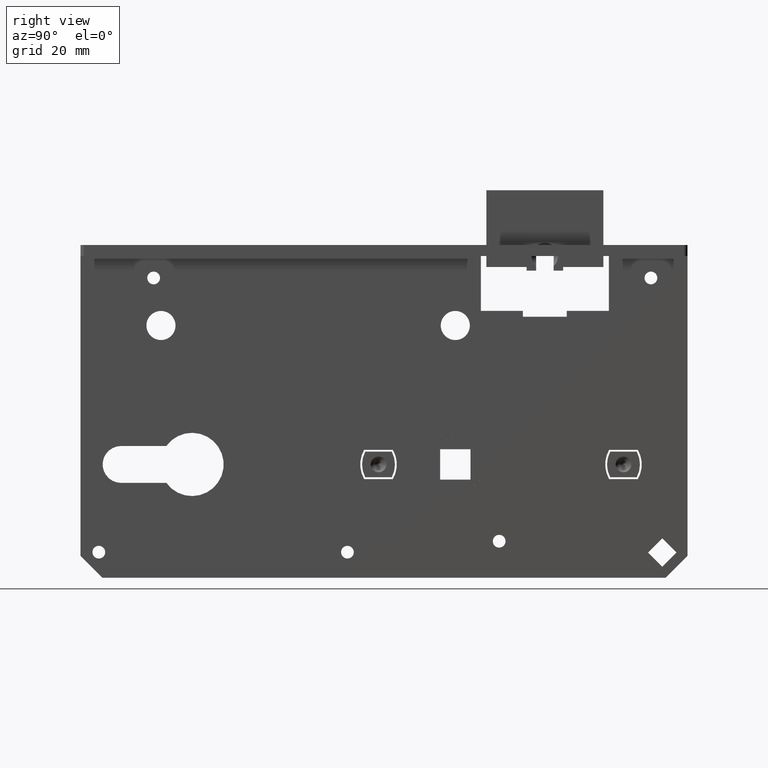
[diagram: clean part render]
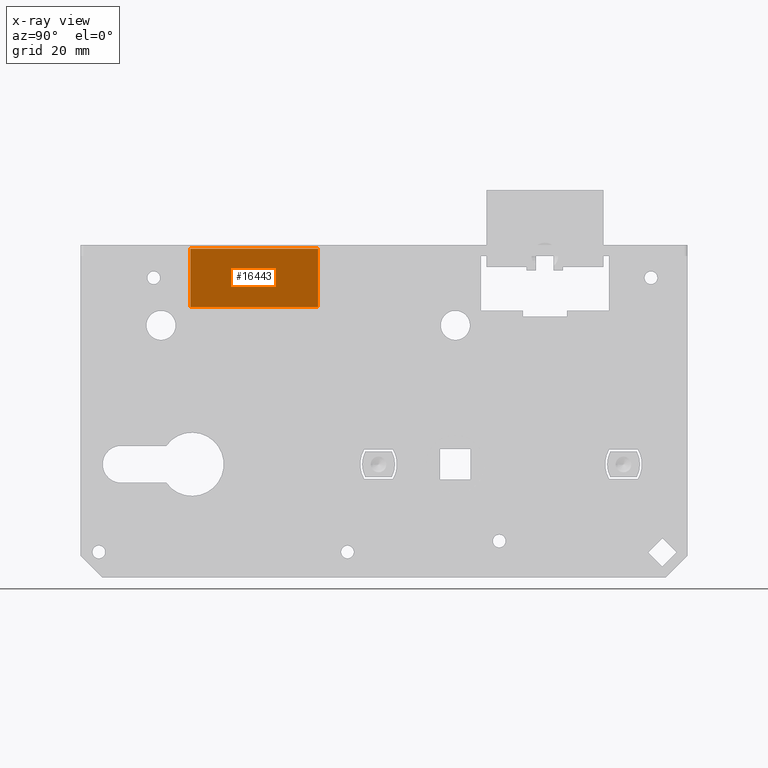
[diagram: x-ray — body ghosted, one internal face saturated and labeled with its STEP entity id]
A machine part, right view, then the same camera in x-ray: the body is ghosted and one INTERNAL B-rep face — a face not visible from any outside direction — is saturated and labeled: STEP entity #16443.
In plain terms, the highlighted planar face has unit normal (-1, -0, 0).
Its self-contained STEP definition (entity closure, byte-faithful):
#1052 = CARTESIAN_POINT ( 'NONE',  ( 4.075000000000002842, -5.833333333333334814, 7.500000000000000888 ) ) ;
#1434 = PLANE ( 'NONE',  #15668 ) ;
#1603 = DIRECTION ( 'NONE',  ( -1.486905836551548832E-16, 1.000000000000000000, -0.000000000000000000 ) ) ;
#1860 = VERTEX_POINT ( 'NONE', #8260 ) ;
#2336 = CARTESIAN_POINT ( 'NONE',  ( 4.075000000000004619, -17.50000000000000000, -8.500000000000000000 ) ) ;
#2566 = DIRECTION ( 'NONE',  ( -0.000000000000000000, -0.000000000000000000, -1.000000000000000000 ) ) ;
#2604 = EDGE_LOOP ( 'NONE', ( #19484, #15704, #6226, #13058 ) ) ;
#4320 = EDGE_CURVE ( 'NONE', #1860, #15123, #11667, .T. ) ;
#6226 = ORIENTED_EDGE ( 'NONE', *, *, #4320, .T. ) ;
#6458 = LINE ( 'NONE', #7747, #17320 ) ;
#7747 = CARTESIAN_POINT ( 'NONE',  ( 4.074999999999999289, 17.50000000000000000, -8.500000000000000000 ) ) ;
#8260 = CARTESIAN_POINT ( 'NONE',  ( 4.075000000000004619, -17.50000000000000000, 7.500000000000000888 ) ) ;
#9055 = DIRECTION ( 'NONE',  ( 1.486905836551548832E-16, -1.000000000000000000, 0.000000000000000000 ) ) ;
#9618 = VERTEX_POINT ( 'NONE', #19791 ) ;
#10019 = VECTOR ( 'NONE', #2566, 1000.000000000000000 ) ;
#11062 = FACE_OUTER_BOUND ( 'NONE', #2604, .T. ) ;
#11667 = LINE ( 'NONE', #19451, #10019 ) ;
#11920 = CARTESIAN_POINT ( 'NONE',  ( 4.075000000000004619, -17.50000000000000000, 7.500000000000000888 ) ) ;
#11978 = CARTESIAN_POINT ( 'NONE',  ( 4.074999999999999289, 17.50000000000000000, 8.500000000000000000 ) ) ;
#12855 = EDGE_CURVE ( 'NONE', #9618, #12945, #15904, .T. ) ;
#12945 = VERTEX_POINT ( 'NONE', #17184 ) ;
#13058 = ORIENTED_EDGE ( 'NONE', *, *, #16386, .T. ) ;
#13195 = B_SPLINE_CURVE_WITH_KNOTS ( 'NONE', 3,
 ( #19705, #18082, #1052, #11920 ),
 .UNSPECIFIED., .F., .F.,
 ( 4, 4 ),
 ( 0.000000000000000000, 1.000000000000000000 ),
 .UNSPECIFIED. ) ;
#15123 = VERTEX_POINT ( 'NONE', #2336 ) ;
#15444 = EDGE_CURVE ( 'NONE', #9618, #1860, #13195, .T. ) ;
#15668 = AXIS2_PLACEMENT_3D ( 'NONE', #19964, #18332, #9055 ) ;
#15704 = ORIENTED_EDGE ( 'NONE', *, *, #15444, .T. ) ;
#15904 = LINE ( 'NONE', #11978, #18561 ) ;
#16386 = EDGE_CURVE ( 'NONE', #15123, #12945, #6458, .T. ) ;
#16443 = ADVANCED_FACE ( 'NONE', ( #11062 ), #1434, .F. ) ;
#17184 = CARTESIAN_POINT ( 'NONE',  ( 4.074999999999999289, 17.50000000000000000, -8.500000000000000000 ) ) ;
#17320 = VECTOR ( 'NONE', #1603, 1000.000000000000000 ) ;
#18001 = DIRECTION ( 'NONE',  ( -0.000000000000000000, -0.000000000000000000, -1.000000000000000000 ) ) ;
#18082 = CARTESIAN_POINT ( 'NONE',  ( 4.075000000000001066, 5.833333333333334814, 7.500000000000000888 ) ) ;
#18332 = DIRECTION ( 'NONE',  ( -1.000000000000000000, -1.486905836551548832E-16, 0.000000000000000000 ) ) ;
#18561 = VECTOR ( 'NONE', #18001, 1000.000000000000000 ) ;
#19451 = CARTESIAN_POINT ( 'NONE',  ( 4.075000000000004619, -17.50000000000000000, 8.500000000000000000 ) ) ;
#19484 = ORIENTED_EDGE ( 'NONE', *, *, #12855, .F. ) ;
#19705 = CARTESIAN_POINT ( 'NONE',  ( 4.074999999999999289, 17.50000000000000000, 7.500000000000000888 ) ) ;
#19791 = CARTESIAN_POINT ( 'NONE',  ( 4.074999999999999289, 17.50000000000000000, 7.500000000000000888 ) ) ;
#19964 = CARTESIAN_POINT ( 'NONE',  ( 4.074999999999999289, 17.50000000000000000, 8.500000000000000000 ) ) ;